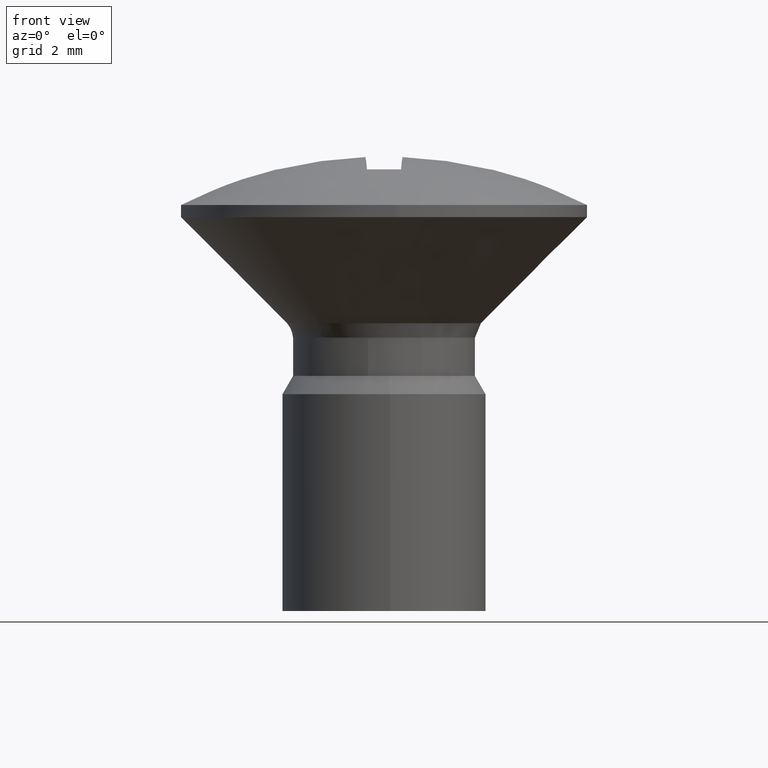
[diagram: clean part render]
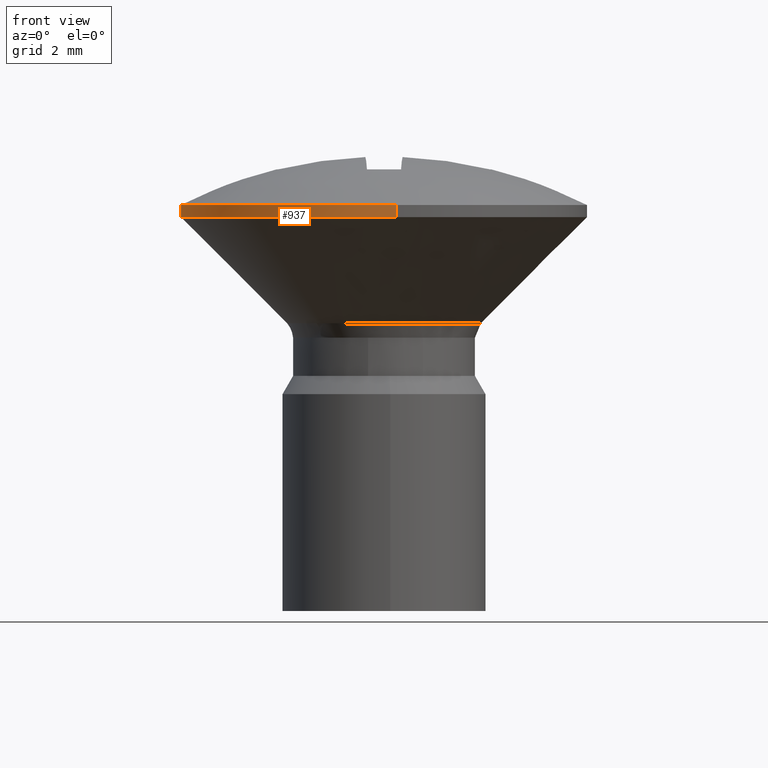
[diagram: same view with one face highlighted and labeled with its STEP entity id]
A machine part, front view. The second image highlights one B-rep face of the part: STEP entity #937.
In plain terms, the highlighted face is a freeform B-spline surface patch.
Its self-contained STEP definition (entity closure, byte-faithful):
#586=CARTESIAN_POINT('',(0.305241107756688,-4.990674089352352,-0.300000000000051));
#587=VERTEX_POINT('',#586);
#588=CARTESIAN_POINT('',(-1.964125646197499,-4.598065946238224,-0.299999999999369));
#589=VERTEX_POINT('',#588);
#590=CARTESIAN_POINT('',(0.305241107756688,-4.990674089352352,-0.300000000000051));
#591=CARTESIAN_POINT('',(0.152763019305179,-5.0,-0.300000000000004));
#592=CARTESIAN_POINT('',(0.0,-5.0,-0.300000000000004));
#593=CARTESIAN_POINT('',(-1.023188242926425,-5.0,-0.300000000000005));
#594=CARTESIAN_POINT('',(-1.964125646197498,-4.598065946238224,-0.299999999999369));
#602=(BOUNDED_CURVE()B_SPLINE_CURVE(2,(#590,#591,#592,#593,#594),.UNSPECIFIED.,.F.,.U.)B_SPLINE_CURVE_WITH_KNOTS((3,2,3),(0.739333017211535,0.750000000000000,0.816696862373133),.UNSPECIFIED.)CURVE()GEOMETRIC_REPRESENTATION_ITEM()RATIONAL_B_SPLINE_CURVE((0.976072159483476,0.987502852304236,1.0,0.921859765179100,0.885413198259432))REPRESENTATION_ITEM(''));
#603=EDGE_CURVE('',#587,#589,#602,.T.);
#700=CARTESIAN_POINT('',(-5.0,0.0,-0.300000000000004));
#701=VERTEX_POINT('',#700);
#702=CARTESIAN_POINT('',(-1.964125646197499,-4.598065946238224,-0.299999999999369));
#703=CARTESIAN_POINT('',(-4.999999999999999,-3.301251427550790,-0.300000000000004));
#704=CARTESIAN_POINT('',(-5.0,0.0,-0.300000000000004));
#712=(BOUNDED_CURVE()B_SPLINE_CURVE(2,(#702,#703,#704),.UNSPECIFIED.,.F.,.U.)B_SPLINE_CURVE_WITH_KNOTS((3,3),(0.816696862373133,1.0),.UNSPECIFIED.)CURVE()GEOMETRIC_REPRESENTATION_ITEM()RATIONAL_B_SPLINE_CURVE((0.885413198259433,0.785247016007446,1.0))REPRESENTATION_ITEM(''));
#713=EDGE_CURVE('',#589,#701,#712,.T.);
#715=CARTESIAN_POINT('',(-0.590169328425906,4.965047851106961,-0.300000000000069));
#716=VERTEX_POINT('',#715);
#717=CARTESIAN_POINT('',(-5.0,0.0,-0.300000000000004));
#718=CARTESIAN_POINT('',(-5.0,4.440874291463851,-0.300000000000004));
#719=CARTESIAN_POINT('',(-0.590169328425906,4.965047851106961,-0.300000000000069));
#727=(BOUNDED_CURVE()B_SPLINE_CURVE(2,(#717,#718,#719),.UNSPECIFIED.,.F.,.U.)B_SPLINE_CURVE_WITH_KNOTS((3,3),(0.0,0.229562536312018),.UNSPECIFIED.)CURVE()GEOMETRIC_REPRESENTATION_ITEM()RATIONAL_B_SPLINE_CURVE((1.0,0.731050759282372,0.956026877271384))REPRESENTATION_ITEM(''));
#728=EDGE_CURVE('',#701,#716,#727,.T.);
#833=CARTESIAN_POINT('',(-0.590169351204147,4.965047848399439,0.000004074688201));
#834=VERTEX_POINT('',#833);
#835=CARTESIAN_POINT('',(-0.590169351204147,4.965047848399439,0.000004074688201));
#836=CARTESIAN_POINT('',(-0.590169328425906,4.965047851106961,-0.300000000000069));
#837=QUASI_UNIFORM_CURVE('',1,(#835,#836),.UNSPECIFIED.,.F.,.U.);
#838=EDGE_CURVE('',#834,#716,#837,.T.);
#857=CARTESIAN_POINT('',(0.305241127389485,-4.990674088151572,0.000004074688201));
#858=VERTEX_POINT('',#857);
#872=CARTESIAN_POINT('',(0.305241127389485,-4.990674088151572,0.000004074688201));
#873=CARTESIAN_POINT('',(0.305241107756688,-4.990674089352352,-0.300000000000051));
#874=QUASI_UNIFORM_CURVE('',1,(#872,#873),.UNSPECIFIED.,.F.,.U.);
#875=EDGE_CURVE('',#858,#587,#874,.T.);
#882=CARTESIAN_POINT('',(0.305242697674285,-4.990673992109334,0.007504176555406));
#883=CARTESIAN_POINT('',(-4.685431294435048,-5.295916689783620,0.007504176555406));
#884=CARTESIAN_POINT('',(-4.990673992109334,-0.305242697674285,0.007504176555406));
#885=CARTESIAN_POINT('',(-5.278930983662638,4.407717454197504,0.007504176555406));
#886=CARTESIAN_POINT('',(-0.590171173283792,4.965047631818332,0.007504176555406));
#887=CARTESIAN_POINT('',(0.305242697674285,-4.990673992109334,-0.307687604413890));
#888=CARTESIAN_POINT('',(-4.685431294435048,-5.295916689783620,-0.307687604413890));
#889=CARTESIAN_POINT('',(-4.990673992109334,-0.305242697674285,-0.307687604413890));
#890=CARTESIAN_POINT('',(-5.278930983662638,4.407717454197504,-0.307687604413890));
#891=CARTESIAN_POINT('',(-0.590171173283792,4.965047631818332,-0.307687604413890));
#899=(BOUNDED_SURFACE()B_SPLINE_SURFACE(2,1,((#882,#887),(#883,#888),(#884,#889),(#885,#890),(#886,#891)),.UNSPECIFIED.,.F.,.F.,.U.)B_SPLINE_SURFACE_WITH_KNOTS((3,2,3),(2,2),(0.0,8.284271247461899,16.237171645025320),(0.0,0.315191780969296),.UNSPECIFIED.)GEOMETRIC_REPRESENTATION_ITEM()RATIONAL_B_SPLINE_SURFACE(((1.0,1.0),(0.707106781186548,0.707106781186548),(1.0,1.0),(0.718822509939086,0.718822509939086),(0.977505800795127,0.977505800795127)))REPRESENTATION_ITEM('')SURFACE());
#900=ORIENTED_EDGE('',*,*,#728,.F.);
#901=ORIENTED_EDGE('',*,*,#713,.F.);
#902=ORIENTED_EDGE('',*,*,#603,.F.);
#903=ORIENTED_EDGE('',*,*,#875,.F.);
#904=CARTESIAN_POINT('',(-5.0,0.0,0.000004074688201));
#905=VERTEX_POINT('',#904);
#906=CARTESIAN_POINT('',(0.305241127389485,-4.990674088151572,0.000004074688201));
#907=CARTESIAN_POINT('',(0.152763029149100,-5.000000000000001,0.000004074688201));
#908=CARTESIAN_POINT('',(0.0,-5.0,0.000004074688201));
#909=CARTESIAN_POINT('',(-5.000000000000001,-5.000000000000001,0.000004074688201));
#910=CARTESIAN_POINT('',(-5.0,0.0,0.000004074688201));
#918=(BOUNDED_CURVE()B_SPLINE_CURVE(2,(#906,#907,#908,#909,#910),.UNSPECIFIED.,.F.,.U.)B_SPLINE_CURVE_WITH_KNOTS((3,2,3),(0.739333016532754,0.750000000000000,1.0),.UNSPECIFIED.)CURVE()GEOMETRIC_REPRESENTATION_ITEM()RATIONAL_B_SPLINE_CURVE((0.976072158028718,0.987502851508994,1.0,0.707106781186548,1.0))REPRESENTATION_ITEM(''));
#919=EDGE_CURVE('',#858,#905,#918,.T.);
#920=ORIENTED_EDGE('',*,*,#919,.T.);
#921=CARTESIAN_POINT('',(-5.0,0.0,0.000004074688201));
#922=CARTESIAN_POINT('',(-5.0,4.440874270946948,0.000004074688201));
#923=CARTESIAN_POINT('',(-0.590169351204147,4.965047848399439,0.000004074688201));
#931=(BOUNDED_CURVE()B_SPLINE_CURVE(2,(#921,#922,#923),.UNSPECIFIED.,.F.,.U.)B_SPLINE_CURVE_WITH_KNOTS((3,3),(0.0,0.229562535536678),.UNSPECIFIED.)CURVE()GEOMETRIC_REPRESENTATION_ITEM()RATIONAL_B_SPLINE_CURVE((1.0,0.731050760190739,0.956026875751687))REPRESENTATION_ITEM(''));
#932=EDGE_CURVE('',#905,#834,#931,.T.);
#933=ORIENTED_EDGE('',*,*,#932,.T.);
#934=ORIENTED_EDGE('',*,*,#838,.T.);
#935=EDGE_LOOP('',(#900,#901,#902,#903,#920,#933,#934));
#936=FACE_OUTER_BOUND('',#935,.T.);
#937=ADVANCED_FACE('',(#936),#899,.T.);